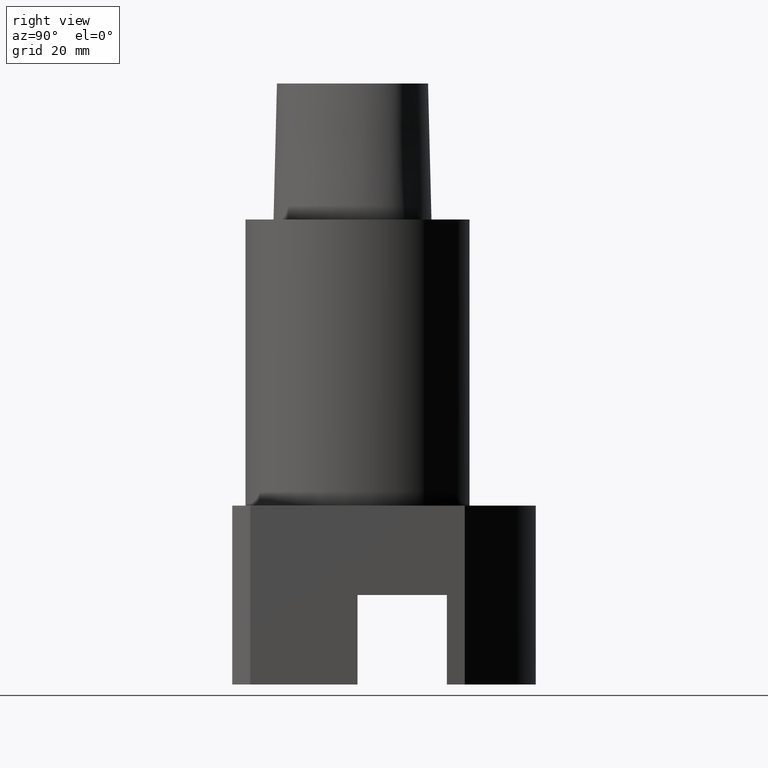
[diagram: clean part render]
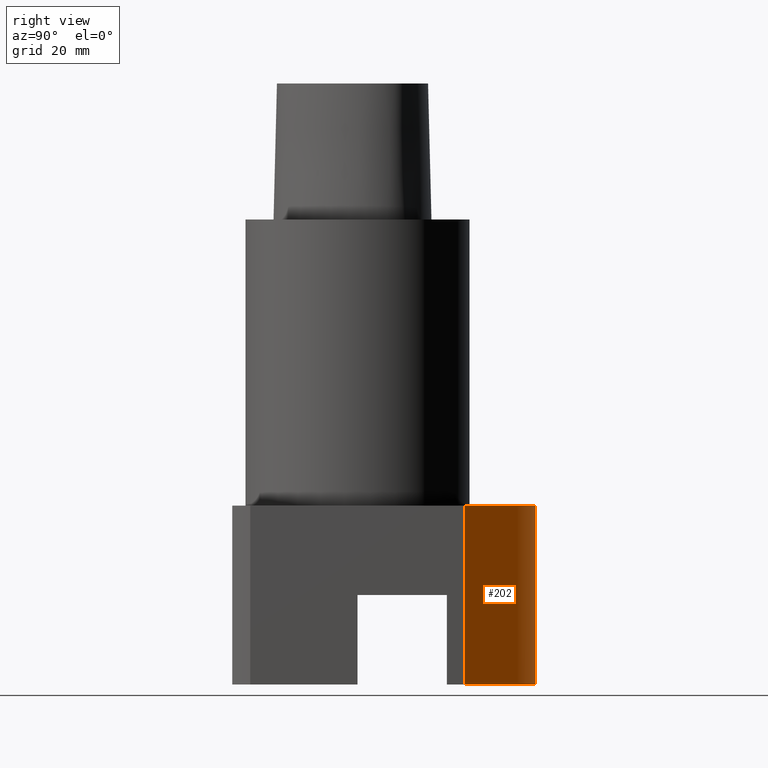
[diagram: same view with one face highlighted and labeled with its STEP entity id]
A machine part, right view. The second image highlights one B-rep face of the part: STEP entity #202.
In plain terms, the highlighted cylindrical surface (partial cylindrical patch) has radius 50 mm, axis along (0, 0, -1).
Its self-contained STEP definition (entity closure, byte-faithful):
#117=EDGE_CURVE('240[2]',#290,#283,#291,.T.);
#135=EDGE_CURVE('240[2]',#298,#290,#316,.T.);
#152=EDGE_CURVE('240[2]',#298,#248,#340,.T.);
#193=EDGE_CURVE('240[2]',#283,#248,#390,.T.);
#202=ADVANCED_FACE('240[2]',(#400),#401,.T.);
#248=VERTEX_POINT('',#445);
#283=VERTEX_POINT('',#578);
#290=VERTEX_POINT('',#589);
#291=CIRCLE('',#590,50.0);
#298=VERTEX_POINT('',#602);
#316=LINE('',#695,#696);
#340=CIRCLE('',#729,50.0);
#390=LINE('',#837,#838);
#400=FACE_OUTER_BOUND('',#868,.T.);
#401=CYLINDRICAL_SURFACE('',#869,50.0);
#445=CARTESIAN_POINT('',(-40.0000000008908,29.9999999984574,-130.0));
#578=CARTESIAN_POINT('',(-40.0000000008908,29.9999999984575,-80.0));
#589=CARTESIAN_POINT('',(39.9999999991092,29.9999999984574,-80.0));
#590=AXIS2_PLACEMENT_3D('',#955,#956,#957);
#602=CARTESIAN_POINT('',(39.9999999991092,29.9999999984574,-130.0));
#695=CARTESIAN_POINT('',(39.9999999991092,29.9999999984574,-130.0));
#696=VECTOR('',#974,50.0);
#729=AXIS2_PLACEMENT_3D('',#1008,#1009,#1010);
#837=CARTESIAN_POINT('',(-40.0000000008908,29.9999999984575,-80.0));
#838=VECTOR('',#1057,50.0);
#868=EDGE_LOOP('',(#1063,#1064,#1065,#1066));
#869=AXIS2_PLACEMENT_3D('',#1067,#1068,#1069);
#955=CARTESIAN_POINT('',(-8.907932E-010,-1.542589E-009,-80.0));
#956=DIRECTION('',(0.0,0.0,1.0));
#957=DIRECTION('',(0.0,-1.0,0.0));
#974=DIRECTION('',(0.0,0.0,1.0));
#1008=CARTESIAN_POINT('',(-8.908074E-010,-1.542604E-009,-130.0));
#1009=DIRECTION('',(0.0,0.0,1.0));
#1010=DIRECTION('',(0.0,-1.0,0.0));
#1057=DIRECTION('',(0.0,0.0,-1.0));
#1063=ORIENTED_EDGE('',*,*,#117,.F.);
#1064=ORIENTED_EDGE('',*,*,#135,.F.);
#1065=ORIENTED_EDGE('',*,*,#152,.T.);
#1066=ORIENTED_EDGE('',*,*,#193,.F.);
#1067=CARTESIAN_POINT('',(-8.907932E-010,-1.542596E-009,-105.0));
#1068=DIRECTION('',(0.0,0.0,-1.0));
#1069=DIRECTION('',(0.0,-1.0,0.0));